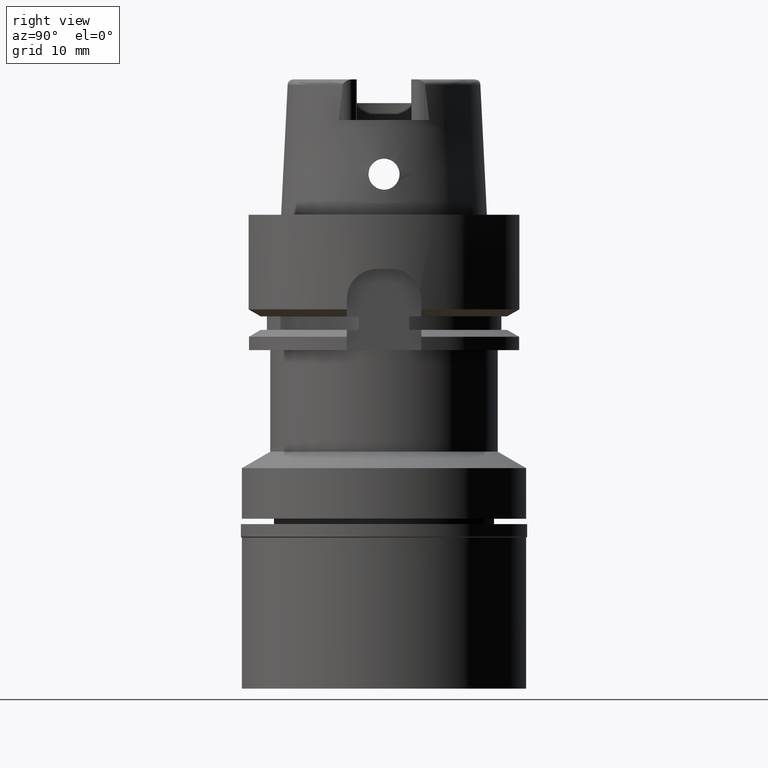
[diagram: clean part render]
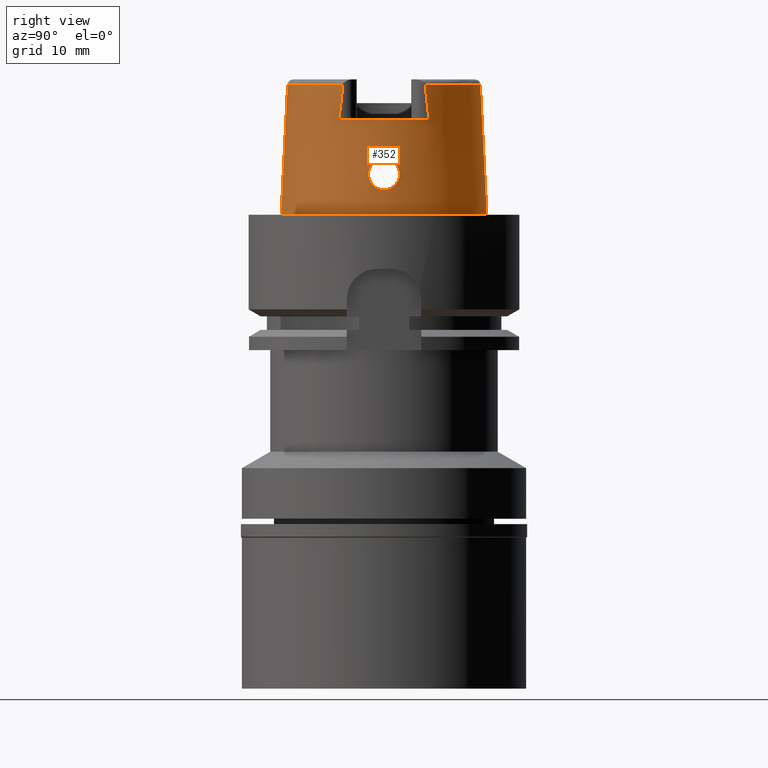
[diagram: same view with one face highlighted and labeled with its STEP entity id]
A machine part, right view. The second image highlights one B-rep face of the part: STEP entity #352.
In plain terms, the highlighted conical surface has half-angle 2.862 deg.
Its self-contained STEP definition (entity closure, byte-faithful):
#1 = CARTESIAN_POINT ( 'NONE',  ( 14.76720264229077983, 0.8884696048942833935, 8.121473001119964508 ) ) ;
#22 = ORIENTED_EDGE ( 'NONE', *, *, #4532, .T. ) ;
#55 = CARTESIAN_POINT ( 'NONE',  ( 0.0000000000000000000, -14.23797715755999782, 19.23995141520000018 ) ) ;
#90 = VERTEX_POINT ( 'NONE', #4732 ) ;
#115 = CARTESIAN_POINT ( 'NONE',  ( 0.0000000000000000000, -14.23797715755999782, 19.23995141520000018 ) ) ;
#143 = EDGE_CURVE ( 'NONE', #242, #1725, #855, .T. ) ;
#172 = CARTESIAN_POINT ( 'NONE',  ( 14.72139618041586573, -1.755542573526525318, 7.496569510163651806 ) ) ;
#194 = CARTESIAN_POINT ( 'NONE',  ( 14.73107783725397191, -1.595554514696325699, 7.656674591391470663 ) ) ;
#218 = CARTESIAN_POINT ( 'NONE',  ( 14.77731901309395113, -0.5814282938311156057, 8.226675195045524802 ) ) ;
#242 = VERTEX_POINT ( 'NONE', #115 ) ;
#244 = CARTESIAN_POINT ( 'NONE',  ( 14.76993064239802500, -0.8163392600609616911, 8.150418802496492532 ) ) ;
#248 = CARTESIAN_POINT ( 'NONE',  ( 14.73838464789642799, 2.283673255521244005, 5.717031159047771816 ) ) ;
#263 = CARTESIAN_POINT ( 'NONE',  ( 14.77403021748278711, -0.6940870227041476825, 8.193120727681970195 ) ) ;
#269 = CARTESIAN_POINT ( 'NONE',  ( 14.99369859953582207, 0.6924098575434610714, 3.806367731850518688 ) ) ;
#288 = CARTESIAN_POINT ( 'NONE',  ( 14.78448042276499663, -2.153271361086720237, 5.191215242668986818 ) ) ;
#295 = CARTESIAN_POINT ( 'NONE',  ( 14.91310332493011792, 1.491578554821691993, 4.248699990972128582 ) ) ;
#316 = CARTESIAN_POINT ( 'NONE',  ( 14.89011896120244316, -1.642687028854354914, 4.390134021954860799 ) ) ;
#322 = CARTESIAN_POINT ( 'NONE',  ( 14.74746059064439940, 1.309000756800404286, 7.891206140794177593 ) ) ;
#343 = CARTESIAN_POINT ( 'NONE',  ( 14.75280450722332048, 1.208753978975017462, 7.958772444877451946 ) ) ;
#352 = ADVANCED_FACE ( 'NONE', ( #1845, #3108 ), #2176, .T. ) ;
#363 = CARTESIAN_POINT ( 'NONE',  ( 14.87062860233185191, -1.757273805534501854, 4.515609537580949073 ) ) ;
#400 = CARTESIAN_POINT ( 'NONE',  ( 14.76156744408123522, -2.228555501842248265, 5.425854319304590945 ) ) ;
#406 = CARTESIAN_POINT ( 'NONE',  ( 14.76237129637990364, 1.005064329474513851, 8.069065966257710443 ) ) ;
#438 = CARTESIAN_POINT ( 'NONE',  ( 14.71591554278339942, 1.851024872992028003, 7.367622282165832814 ) ) ;
#470 = DIRECTION ( 'NONE',  ( 0.8882768779220027167, 0.4593083802296007434, 0.0000000000000000000 ) ) ;
#559 = EDGE_CURVE ( 'NONE', #2253, #90, #3278, .T. ) ;
#583 = CARTESIAN_POINT ( 'NONE',  ( 14.76817633258635176, -0.8633131008241671234, 8.131833996418242450 ) ) ;
#611 = CARTESIAN_POINT ( 'NONE',  ( 14.71779329819516668, -2.299087319909310256, 6.074385008131913288 ) ) ;
#637 = CARTESIAN_POINT ( 'NONE',  ( 14.70278707568186682, -2.228687130090102997, 6.587634668131774340 ) ) ;
#639 = DIRECTION ( 'NONE',  ( 0.0000000000000000000, -1.000000000000000000, 0.0000000000000000000 ) ) ;
#644 = CARTESIAN_POINT ( 'NONE',  ( 14.91762896612858746, 1.459180112708738708, 4.221659250602693092 ) ) ;
#666 = CARTESIAN_POINT ( 'NONE',  ( 14.75365000359263945, -1.190263404321819651, 7.968170412005450842 ) ) ;
#676 = LINE ( 'NONE', #2374, #1281 ) ;
#686 = CARTESIAN_POINT ( 'NONE',  ( 14.76781662056637501, -0.8727020751864694725, 8.128007703535027773 ) ) ;
#706 = EDGE_LOOP ( 'NONE', ( #4667, #3493, #3019, #2114, #1393, #1379, #2241, #22 ) ) ;
#715 = CARTESIAN_POINT ( 'NONE',  ( 14.84908536394946843, -1.873857377694586823, 4.664199259538155395 ) ) ;
#718 = CARTESIAN_POINT ( 'NONE',  ( 14.76150517817752750, 2.230989088422958400, 5.420707234339884550 ) ) ;
#742 = CARTESIAN_POINT ( 'NONE',  ( 14.72824110891817462, -2.300101298997531796, 5.864734432755099647 ) ) ;
#754 = CARTESIAN_POINT ( 'NONE',  ( 12.88000000001000167, 6.659963896840999986, 14.00000000000000000 ) ) ;
#762 = AXIS2_PLACEMENT_3D ( 'NONE', #1741, #3780, #4060 ) ;
#763 = CARTESIAN_POINT ( 'NONE',  ( 14.97980119303751323, -0.8876784351059042733, 3.878179336099063068 ) ) ;
#769 = CARTESIAN_POINT ( 'NONE',  ( 14.74875900468323664, 1.284725696202011491, 7.907744106688498142 ) ) ;
#771 = EDGE_CURVE ( 'NONE', #90, #2253, #1623, .T. ) ;
#792 = CARTESIAN_POINT ( 'NONE',  ( 14.72730057290446304, 1.657333882859143070, 7.594821360614248285 ) ) ;
#812 = CARTESIAN_POINT ( 'NONE',  ( 14.78748923745487076, -2.142316646971053284, 5.162992399265044163 ) ) ;
#823 = CARTESIAN_POINT ( 'NONE',  ( 14.76093411334229444, 1.037462528873337231, 8.053070434397287869 ) ) ;
#855 = LINE ( 'NONE', #55, #3288 ) ;
#903 = AXIS2_PLACEMENT_3D ( 'NONE', #2329, #3103, #3596 ) ;
#1022 = CARTESIAN_POINT ( 'NONE',  ( 14.71324047747436126, -2.292924399370714017, 6.183994065468948698 ) ) ;
#1025 = CARTESIAN_POINT ( 'NONE',  ( 0.0000000000000000000, 14.23797715755999782, 19.23995141520000018 ) ) ;
#1027 = CARTESIAN_POINT ( 'NONE',  ( 15.01216024442078378, 0.2893524015211426659, 3.713389520195632176 ) ) ;
#1051 = CARTESIAN_POINT ( 'NONE',  ( 0.0000000000000000000, 1.342457523729000028E-14, 9.619975707600000092 ) ) ;
#1055 = CARTESIAN_POINT ( 'NONE',  ( 15.00008916891907518, 0.5827676808513629902, 3.773748085926682094 ) ) ;
#1072 = CARTESIAN_POINT ( 'NONE',  ( 14.78499286951999636, -0.1391756145703256231, 8.299999999999998934 ) ) ;
#1077 = CARTESIAN_POINT ( 'NONE',  ( 14.96044055602768630, 1.107340051833965111, 3.978521285913407368 ) ) ;
#1101 = CARTESIAN_POINT ( 'NONE',  ( 14.70905000973601062, -1.978086552011957933, 7.175936672938100891 ) ) ;
#1109 = CARTESIAN_POINT ( 'NONE',  ( 14.80653935019741851, 2.068452204468117728, 4.992980833577002286 ) ) ;
#1136 = CARTESIAN_POINT ( 'NONE',  ( 14.93864860367077796, 1.297535571076419592, 4.099461658564449884 ) ) ;
#1179 = CARTESIAN_POINT ( 'NONE',  ( 14.83944436681648682, -1.920884344976056646, 4.734973330218039678 ) ) ;
#1185 = CARTESIAN_POINT ( 'NONE',  ( 14.77912392857840018, 0.5828703221745907825, 8.248662934343320430 ) ) ;
#1204 = CARTESIAN_POINT ( 'NONE',  ( 14.97618292910479454, -0.9317931712362607088, 3.897086156092339770 ) ) ;
#1212 = CARTESIAN_POINT ( 'NONE',  ( 14.70330888369040778, 2.224627193735192687, 6.588932765772033129 ) ) ;
#1231 = CARTESIAN_POINT ( 'NONE',  ( 14.83564924807491181, -1.939153593823936372, 4.763150147672264190 ) ) ;
#1237 = CARTESIAN_POINT ( 'NONE',  ( 14.72892122233149337, 1.630338754948051028, 7.622342610093115312 ) ) ;
#1257 = CARTESIAN_POINT ( 'NONE',  ( 14.81755823113681103, -2.021972739957513365, 4.903166805378700310 ) ) ;
#1268 = CARTESIAN_POINT ( 'NONE',  ( 14.73565761545677155, 1.519454258777471756, 7.727042433274835531 ) ) ;
#1281 = VECTOR ( 'NONE', #3660, 1000.000000000000227 ) ;
#1299 = CARTESIAN_POINT ( 'NONE',  ( 12.87999628661343188, -6.461605140762700650, 15.82216426204298365 ) ) ;
#1340 = VERTEX_POINT ( 'NONE', #754 ) ;
#1379 = ORIENTED_EDGE ( 'NONE', *, *, #2590, .T. ) ;
#1386 = VERTEX_POINT ( 'NONE', #1986 ) ;
#1393 = ORIENTED_EDGE ( 'NONE', *, *, #1772, .F. ) ;
#1446 = CARTESIAN_POINT ( 'NONE',  ( 14.70192435888373339, -2.185227616521955962, 6.733823491999718414 ) ) ;
#1477 = CARTESIAN_POINT ( 'NONE',  ( 14.70329731928839401, -2.122891862972885679, 6.885111733794631483 ) ) ;
#1483 = CARTESIAN_POINT ( 'NONE',  ( 14.93066970024060858, 1.362095945626555338, 4.144870806635192473 ) ) ;
#1484 = CIRCLE ( 'NONE', #2287, 14.49998341749000730 ) ;
#1489 = CIRCLE ( 'NONE', #762, 14.23797715756000315 ) ;
#1502 = CARTESIAN_POINT ( 'NONE',  ( 14.74920213610175779, -1.276369503766169311, 7.913344848174132196 ) ) ;
#1505 = CARTESIAN_POINT ( 'NONE',  ( 14.77581027532843017, 2.186694228961773234, 5.268270867384146960 ) ) ;
#1521 = CARTESIAN_POINT ( 'NONE',  ( 14.74980961183667993, -1.264887640985278061, 7.920966464290619236 ) ) ;
#1547 = CARTESIAN_POINT ( 'NONE',  ( 14.72981229748400800, -1.616027270497286672, 7.636626740827475501 ) ) ;
#1551 = ORIENTED_EDGE ( 'NONE', *, *, #559, .F. ) ;
#1599 = CARTESIAN_POINT ( 'NONE',  ( 14.70695050044167829, 2.017590789650262728, 7.114351364698928037 ) ) ;
#1623 = B_SPLINE_CURVE_WITH_KNOTS ( 'NONE', 3,
 ( #4015, #1072, #4040, #3598, #218, #263, #2283, #244, #2363, #583, #686, #5269, #1922, #4423, #3645, #4068, #666, #4885, #1898, #1521, #4451, #1502, #3182, #3233, #2387, #5313, #194, #1547, #4835, #5240, #2749, #2309, #2772, #4905, #3959, #3985, #172, #1950, #1101, #3620, #3155, #5293, #1870, #3546, #5210, #1477, #1446, #637, #3129, #4805, #1022, #4398, #611, #4594, #742, #4990, #2044, #400, #4090, #3336, #288, #812, #2431, #1675, #4926, #5335, #1257, #3309, #2515, #4194, #1231, #2898, #1179, #715, #3674, #363, #4117, #5381, #4498, #316, #4976, #2103, #3778, #3363, #5033, #3280, #2923, #1204, #2406, #4540, #763, #4569, #1993, #4948 ),
 .UNSPECIFIED., .F., .F.,
 ( 4, 2, 2, 1, 1, 1, 2, 2, 2, 2, 1, 1, 1, 2, 2, 2, 2, 2, 1, 1, 1, 2, 2, 2, 2, 1, 1, 2, 2, 2, 2, 2, 2, 2, 2, 1, 1, 2, 2, 2, 2, 1, 2, 2, 2, 1, 1, 2, 2, 2, 2, 1, 1, 2, 2, 4 ),
 ( 0.0000000000000000000, 0.06250000000002985112, 0.09375000000004476974, 0.1093750000000523470, 0.1171875000000559969, 0.1210937500000578149, 0.1230468750000587169, 0.1250000000000596190, 0.1562500000000745515, 0.1718750000000817957, 0.1796875000000855982, 0.1835937500000875133, 0.1855468750000884848, 0.1865234375000889289, 0.1875000000000893452, 0.2187500000000972833, 0.2343750000001011413, 0.2421875000001030009, 0.2460937500001044720, 0.2480468750001054157, 0.2490234375001037503, 0.2495117187501036671, 0.2500000000001035283, 0.3125000000001019185, 0.3437500000001010858, 0.3593750000001005862, 0.3671875000001003642, 0.3710937500001000866, 0.3750000000000997535, 0.4375000000000922040, 0.4687500000000882627, 0.4843750000000861533, 0.5000000000000839329, 0.5625000000000750511, 0.5937500000000704992, 0.6093750000000681677, 0.6171875000000669464, 0.6210937500000663913, 0.6250000000000658362, 0.6562500000000607292, 0.6718750000000582867, 0.6796875000000570655, 0.6835937500000562883, 0.6875000000000555112, 0.7187500000000489608, 0.7343750000000455191, 0.7421875000000438538, 0.7460937500000431877, 0.7500000000000424105, 0.8125000000000311973, 0.8437500000000256462, 0.8593750000000227596, 0.8671875000000213163, 0.8710937500000205391, 0.8750000000000198730, 1.000000000000000000 ),
 .UNSPECIFIED. ) ;
#1653 = CARTESIAN_POINT ( 'NONE',  ( 14.76638081779312550, 0.9092272963533597485, 8.112680115931839353 ) ) ;
#1669 = CARTESIAN_POINT ( 'NONE',  ( 12.87999235482999794, -6.068467463555999863, 19.23976219496000084 ) ) ;
#1675 = CARTESIAN_POINT ( 'NONE',  ( 14.79076017643395957, -2.130234140995594494, 5.132725120408807129 ) ) ;
#1682 = CARTESIAN_POINT ( 'NONE',  ( 14.72851255932738468, 1.637138559125930426, 7.615484661195980109 ) ) ;
#1725 = VERTEX_POINT ( 'NONE', #3320 ) ;
#1741 = CARTESIAN_POINT ( 'NONE',  ( 0.0000000000000000000, 1.459778984583999657E-14, 19.23995141520000018 ) ) ;
#1753 = DIRECTION ( 'NONE',  ( 0.0000000000000000000, -0.04993926899656212642, -0.9987522562738413434 ) ) ;
#1772 = EDGE_CURVE ( 'NONE', #3802, #1386, #676, .T. ) ;
#1842 = ORIENTED_EDGE ( 'NONE', *, *, #771, .F. ) ;
#1845 = FACE_OUTER_BOUND ( 'NONE', #706, .T. ) ;
#1870 = CARTESIAN_POINT ( 'NONE',  ( 14.70375658940798580, -2.105287330038593474, 6.926390664454261881 ) ) ;
#1874 = VERTEX_POINT ( 'NONE', #4300 ) ;
#1898 = CARTESIAN_POINT ( 'NONE',  ( 14.75065032297800549, -1.248876159167588096, 7.931454445034910705 ) ) ;
#1902 = CARTESIAN_POINT ( 'NONE',  ( 12.88000000001000167, -6.659963896840999986, 14.00000000000000000 ) ) ;
#1922 = CARTESIAN_POINT ( 'NONE',  ( 14.76520950478226624, -0.9396943743903586332, 8.100206008043272732 ) ) ;
#1950 = CARTESIAN_POINT ( 'NONE',  ( 14.71548080446559936, -1.856546455237253257, 7.365960879231568725 ) ) ;
#1986 = CARTESIAN_POINT ( 'NONE',  ( 0.0000000000000000000, 15.20000663301000010, 5.684341886080998387E-14 ) ) ;
#1993 = CARTESIAN_POINT ( 'NONE',  ( 15.01500049748000265, -0.2875970093675397909, 3.699999999999998845 ) ) ;
#2029 = CARTESIAN_POINT ( 'NONE',  ( 14.71337117006111050, 1.896365627193211445, 7.303614320887154676 ) ) ;
#2044 = CARTESIAN_POINT ( 'NONE',  ( 14.75511519428891916, -2.246327419094103828, 5.500375478184067468 ) ) ;
#2052 = CARTESIAN_POINT ( 'NONE',  ( 14.74608431557818733, 1.334530998761783049, 7.873384040735499134 ) ) ;
#2103 = CARTESIAN_POINT ( 'NONE',  ( 14.91210751178380711, -1.507814773154234622, 4.254671185857885618 ) ) ;
#2111 = CARTESIAN_POINT ( 'NONE',  ( 14.76436978911451270, 0.9582207795525118366, 8.090959111845753782 ) ) ;
#2114 = ORIENTED_EDGE ( 'NONE', *, *, #3895, .T. ) ;
#2136 = CARTESIAN_POINT ( 'NONE',  ( 12.87999235482999794, -6.068467463555999863, 19.23976219496000084 ) ) ;
#2138 = CARTESIAN_POINT ( 'NONE',  ( 0.0000000000000000000, 1.342457523729000028E-14, 14.00000000000000000 ) ) ;
#2176 = CONICAL_SURFACE ( 'NONE', #4963, 14.71899189528999941, 0.04996004983832824653 ) ;
#2241 = ORIENTED_EDGE ( 'NONE', *, *, #4718, .T. ) ;
#2253 = VERTEX_POINT ( 'NONE', #4500 ) ;
#2283 = CARTESIAN_POINT ( 'NONE',  ( 14.77224878652673112, -0.7505141186887123173, 8.174747007063599469 ) ) ;
#2287 = AXIS2_PLACEMENT_3D ( 'NONE', #2138, #4322, #470 ) ;
#2309 = CARTESIAN_POINT ( 'NONE',  ( 14.72897069928876235, -1.629530858522276526, 7.623154133565825497 ) ) ;
#2315 = CARTESIAN_POINT ( 'NONE',  ( 15.00363948524310054, 0.5093489953368235401, 3.755865049600698224 ) ) ;
#2329 = CARTESIAN_POINT ( 'NONE',  ( 0.0000000000000000000, 1.459778984583999657E-14, 19.23995141520000018 ) ) ;
#2341 = CARTESIAN_POINT ( 'NONE',  ( 14.85052550205044319, 1.867320722922695353, 4.655168218417025550 ) ) ;
#2363 = CARTESIAN_POINT ( 'NONE',  ( 14.76871161833036084, -0.8492265415387453276, 8.137520403994860985 ) ) ;
#2367 = CARTESIAN_POINT ( 'NONE',  ( 14.90604676839071807, 1.540011574337391442, 4.291541944438461265 ) ) ;
#2374 = CARTESIAN_POINT ( 'NONE',  ( 0.0000000000000000000, 14.23797715755999782, 19.23995141520000018 ) ) ;
#2387 = CARTESIAN_POINT ( 'NONE',  ( 14.73733817633101140, -1.491312462989942578, 7.752623123807434347 ) ) ;
#2391 = CARTESIAN_POINT ( 'NONE',  ( 15.01500049747999910, 0.0000000000000000000, 3.700000000000000178 ) ) ;
#2406 = CARTESIAN_POINT ( 'NONE',  ( 14.97807143272082087, -0.9089475989131183820, 3.887209802366227152 ) ) ;
#2410 = CARTESIAN_POINT ( 'NONE',  ( 14.73131560104705429, 2.293625882893985057, 5.825102787180580499 ) ) ;
#2431 = CARTESIAN_POINT ( 'NONE',  ( 14.78951381934390774, -2.134870925351762150, 5.144179649888426020 ) ) ;
#2439 = CARTESIAN_POINT ( 'NONE',  ( 14.76710375349439630, 0.8909825970145760499, 8.120416373766978779 ) ) ;
#2462 = CARTESIAN_POINT ( 'NONE',  ( 14.76532971502633984, 0.9352367696578559597, 8.101380475417673921 ) ) ;
#2488 = CARTESIAN_POINT ( 'NONE',  ( 14.74496216118262204, 1.355092497319190681, 7.858491734422372588 ) ) ;
#2492 = EDGE_CURVE ( 'NONE', #3938, #5339, #2968, .T. ) ;
#2510 = CIRCLE ( 'NONE', #5230, 15.20000663301000010 ) ;
#2515 = CARTESIAN_POINT ( 'NONE',  ( 14.82860992875789208, -1.972230638254820700, 4.816480848215509702 ) ) ;
#2519 = CARTESIAN_POINT ( 'NONE',  ( 14.70277955824857585, 2.150504096220148043, 6.816077247848269849 ) ) ;
#2544 = CARTESIAN_POINT ( 'NONE',  ( 14.74279453232067638, 1.394510676934299642, 7.829319213462865079 ) ) ;
#2590 = EDGE_CURVE ( 'NONE', #3802, #1874, #2676, .T. ) ;
#2637 = DIRECTION ( 'NONE',  ( 0.0000000000000000000, -1.000000000000000000, 0.0000000000000000000 ) ) ;
#2676 = CIRCLE ( 'NONE', #903, 14.23797715755999782 ) ;
#2727 = CARTESIAN_POINT ( 'NONE',  ( 14.98146799912857752, 0.8667505241429238616, 3.869553935212956208 ) ) ;
#2749 = CARTESIAN_POINT ( 'NONE',  ( 14.72904674972185290, -1.628310959077896580, 7.624378492265700302 ) ) ;
#2754 = CARTESIAN_POINT ( 'NONE',  ( 14.99023704111988842, 0.7471086058984407474, 3.824125380206624847 ) ) ;
#2772 = CARTESIAN_POINT ( 'NONE',  ( 14.72894958168758883, -1.629870767956382638, 7.622812772376184931 ) ) ;
#2779 = CARTESIAN_POINT ( 'NONE',  ( 14.98232649256040361, 0.8557163737499904332, 3.865089305859875424 ) ) ;
#2805 = CARTESIAN_POINT ( 'NONE',  ( 14.80051564633271255, 2.092639537935069960, 5.045415017945352076 ) ) ;
#2830 = CARTESIAN_POINT ( 'NONE',  ( 14.89481308743447485, 1.613538811823380437, 4.360920470070233534 ) ) ;
#2855 = CARTESIAN_POINT ( 'NONE',  ( 14.72880477828798362, 1.632275782036693768, 7.620394298559940438 ) ) ;
#2878 = CARTESIAN_POINT ( 'NONE',  ( 14.72320473717247857, 2.300013945573916807, 5.964494725489295490 ) ) ;
#2898 = CARTESIAN_POINT ( 'NONE',  ( 14.83806240365515450, -1.927575721372196238, 4.745182859528971342 ) ) ;
#2905 = CARTESIAN_POINT ( 'NONE',  ( 14.70317394866275684, 2.128405321354693402, 6.871750769367722889 ) ) ;
#2923 = CARTESIAN_POINT ( 'NONE',  ( 14.97156674660902631, -0.9854958979347185899, 3.921344386826397521 ) ) ;
#2929 = CARTESIAN_POINT ( 'NONE',  ( 14.72270127388761196, 1.734450797356519081, 7.511579447716980162 ) ) ;
#2957 = CARTESIAN_POINT ( 'NONE',  ( 14.78499286951999991, 0.2788160883449998240, 8.300000000000006040 ) ) ;
#2968 = B_SPLINE_CURVE_WITH_KNOTS ( 'NONE', 3,
 ( #4658, #1299, #3018, #2136 ),
 .UNSPECIFIED., .F., .F.,
 ( 4, 4 ),
 ( 0.0000000000000000000, 1.000000000000000000 ),
 .UNSPECIFIED. ) ;
#3018 = CARTESIAN_POINT ( 'NONE',  ( 12.87998480872806084, -6.264498830243788063, 17.56875155615921358 ) ) ;
#3019 = ORIENTED_EDGE ( 'NONE', *, *, #143, .T. ) ;
#3025 = DIRECTION ( 'NONE',  ( 0.0000000000000000000, 0.0000000000000000000, 1.000000000000000000 ) ) ;
#3103 = DIRECTION ( 'NONE',  ( 0.0000000000000000000, 0.0000000000000000000, -1.000000000000000000 ) ) ;
#3108 = FACE_BOUND ( 'NONE', #4170, .T. ) ;
#3129 = CARTESIAN_POINT ( 'NONE',  ( 14.70731352311811335, -2.271682336033174820, 6.367490912690039195 ) ) ;
#3155 = CARTESIAN_POINT ( 'NONE',  ( 14.70531919359189388, -2.060537223936308227, 7.022424985088719929 ) ) ;
#3162 = CARTESIAN_POINT ( 'NONE',  ( 14.79652018146351011, 2.108368993475396191, 5.080678015576196138 ) ) ;
#3182 = CARTESIAN_POINT ( 'NONE',  ( 14.74916473909279446, -1.277077397323025387, 7.912876191129118553 ) ) ;
#3184 = CARTESIAN_POINT ( 'NONE',  ( 14.98573257728376795, 0.8105661619660866624, 3.847411101479868645 ) ) ;
#3208 = CARTESIAN_POINT ( 'NONE',  ( 12.88000642478999858, 6.068395837171999929, 19.23995141520000018 ) ) ;
#3214 = CARTESIAN_POINT ( 'NONE',  ( 14.89626939606834455, 1.604271477149876279, 4.351838369907127024 ) ) ;
#3233 = CARTESIAN_POINT ( 'NONE',  ( 14.74232335281342010, -1.405636856705496651, 7.826667567256946789 ) ) ;
#3237 = CARTESIAN_POINT ( 'NONE',  ( 14.88524216259907718, 1.673869351442358155, 4.420800719733525952 ) ) ;
#3262 = CARTESIAN_POINT ( 'NONE',  ( 14.70255723605117204, 2.173856954397404451, 6.752946483152019397 ) ) ;
#3278 = B_SPLINE_CURVE_WITH_KNOTS ( 'NONE', 3,
 ( #2391, #4814, #1027, #2315, #1055, #269, #2754, #3184, #4864, #2779, #2727, #3602, #1077, #1136, #1483, #644, #295, #2367, #5274, #3579, #3214, #2830, #3237, #5295, #4073, #2341, #5319, #3622, #4020, #1109, #2805, #3162, #4503, #1505, #718, #4455, #248, #2410, #4404, #3343, #2878, #3785, #5366, #4631, #1212, #5040, #3262, #2519, #4930, #4236, #2905, #4201, #1599, #2029, #438, #5010, #2929, #5390, #792, #3370, #1682, #5342, #2855, #1237, #3286, #4575, #1268, #3705, #4958, #2544, #2488, #2052, #322, #5417, #4173, #769, #343, #3678, #823, #406, #2111, #2462, #1653, #4600, #2439, #1, #1185, #2957, #4547 ),
 .UNSPECIFIED., .F., .F.,
 ( 4, 2, 2, 1, 1, 2, 2, 2, 2, 2, 1, 2, 2, 2, 2, 2, 1, 2, 2, 2, 2, 2, 2, 2, 2, 1, 1, 2, 2, 2, 2, 1, 1, 1, 1, 1, 2, 2, 2, 2, 2, 1, 1, 2, 2, 2, 2, 1, 1, 2, 2, 4 ),
 ( 0.0000000000000000000, 0.06250000000014861723, 0.09375000000022294666, 0.1093750000002601114, 0.1171875000002787354, 0.1210937500002880612, 0.1250000000002973732, 0.1875000000004462819, 0.2187500000005208611, 0.2343750000005582479, 0.2421875000005770662, 0.2460937500005863643, 0.2500000000005956902, 0.2812500000006702972, 0.3125000000007448486, 0.3437500000008194556, 0.3593750000008567591, 0.3671875000008753553, 0.3750000000008939516, 0.4375000000010421664, 0.4687500000011160517, 0.4843750000011528556, 0.5000000000011896040, 0.5625000000013371526, 0.5937500000014107604, 0.6093750000014473978, 0.6171875000014658275, 0.6210937500014752644, 0.6250000000014845902, 0.6875000000016350254, 0.7187500000017101875, 0.7343750000017480462, 0.7421875000017669199, 0.7460937500017764679, 0.7480468750017813528, 0.7490234375017837953, 0.7495117187517851276, 0.7500000000017865709, 0.7812500000015555335, 0.7968750000014399593, 0.8046875000013822277, 0.8085937500013533619, 0.8105468750013390400, 0.8115234375013318235, 0.8125000000013246071, 0.8437500000011010082, 0.8593750000009893197, 0.8671875000009334755, 0.8710937500009056089, 0.8730468750008918422, 0.8750000000008780754, 1.000000000000000000 ),
 .UNSPECIFIED. ) ;
#3280 = CARTESIAN_POINT ( 'NONE',  ( 14.96725057751258348, -1.032134887418608926, 3.944290136861687390 ) ) ;
#3286 = CARTESIAN_POINT ( 'NONE',  ( 14.72897698920208676, 1.629411162361538601, 7.623274758165993426 ) ) ;
#3288 = VECTOR ( 'NONE', #1753, 1000.000000000000227 ) ;
#3309 = CARTESIAN_POINT ( 'NONE',  ( 14.82185081583405939, -2.003074697910550928, 4.868922263044074050 ) ) ;
#3320 = CARTESIAN_POINT ( 'NONE',  ( 0.0000000000000000000, -15.20000663301000010, 1.527666881883999820E-13 ) ) ;
#3336 = CARTESIAN_POINT ( 'NONE',  ( 14.77765626216125128, -2.177348013164218887, 5.257069935556764939 ) ) ;
#3343 = CARTESIAN_POINT ( 'NONE',  ( 14.72500900753388819, 2.299249273269633242, 5.931425077987564798 ) ) ;
#3363 = CARTESIAN_POINT ( 'NONE',  ( 14.95142558221937357, -1.189404405358674754, 4.029959945882174210 ) ) ;
#3370 = CARTESIAN_POINT ( 'NONE',  ( 14.72810580111224965, 1.643911431280034696, 7.608604480931910885 ) ) ;
#3493 = ORIENTED_EDGE ( 'NONE', *, *, #5110, .T. ) ;
#3546 = CARTESIAN_POINT ( 'NONE',  ( 14.70350606668146831, -2.114575182731917469, 6.904783076964276844 ) ) ;
#3579 = CARTESIAN_POINT ( 'NONE',  ( 14.89875562895232619, 1.588254843417976625, 4.336398399956775229 ) ) ;
#3596 = DIRECTION ( 'NONE',  ( 0.0000000000000000000, 1.000000000000000000, 0.0000000000000000000 ) ) ;
#3598 = CARTESIAN_POINT ( 'NONE',  ( 14.77914612176681253, -0.5065881320972810409, 8.244784997213507438 ) ) ;
#3602 = CARTESIAN_POINT ( 'NONE',  ( 14.97210884702086808, 0.9853782908116196504, 3.918270532089204838 ) ) ;
#3620 = CARTESIAN_POINT ( 'NONE',  ( 14.70731345635878640, -2.013636645086462007, 7.113522997970052941 ) ) ;
#3622 = CARTESIAN_POINT ( 'NONE',  ( 14.82500704708316341, 1.988596419559568007, 4.841885597336854197 ) ) ;
#3645 = CARTESIAN_POINT ( 'NONE',  ( 14.75792287674205028, -1.102787470605057552, 8.018733999658982370 ) ) ;
#3660 = DIRECTION ( 'NONE',  ( 0.0000000000000000000, 0.04993926899656212642, -0.9987522562738413434 ) ) ;
#3674 = CARTESIAN_POINT ( 'NONE',  ( 14.85768483925605921, -1.828954227871980587, 4.603349892599211124 ) ) ;
#3678 = CARTESIAN_POINT ( 'NONE',  ( 14.75630800058581471, 1.137745804606199007, 8.000310304365571668 ) ) ;
#3705 = CARTESIAN_POINT ( 'NONE',  ( 14.73772986802796581, 1.484164813753395151, 7.757955113719580353 ) ) ;
#3778 = CARTESIAN_POINT ( 'NONE',  ( 14.92936835592787048, -1.380017842817133467, 4.153784040051897719 ) ) ;
#3780 = DIRECTION ( 'NONE',  ( 0.0000000000000000000, 0.0000000000000000000, -1.000000000000000000 ) ) ;
#3785 = CARTESIAN_POINT ( 'NONE',  ( 14.71399977283508242, 2.299943352517479500, 6.146481960841199133 ) ) ;
#3802 = VERTEX_POINT ( 'NONE', #1025 ) ;
#3895 = EDGE_CURVE ( 'NONE', #1725, #1386, #2510, .T. ) ;
#3938 = VERTEX_POINT ( 'NONE', #1902 ) ;
#3959 = CARTESIAN_POINT ( 'NONE',  ( 14.72894134124535981, -1.630004321465590378, 7.622678622849567098 ) ) ;
#3985 = CARTESIAN_POINT ( 'NONE',  ( 14.72899866985667217, -1.629050198060672638, 7.623637085054038032 ) ) ;
#3988 = CARTESIAN_POINT ( 'NONE',  ( 0.0000000000000000000, 1.342457523729000028E-14, 5.684341886080998387E-14 ) ) ;
#4015 = CARTESIAN_POINT ( 'NONE',  ( 14.78499286951999991, -6.884507511411997731E-14, 8.300000000000000711 ) ) ;
#4020 = CARTESIAN_POINT ( 'NONE',  ( 14.81265457374479944, 2.042544949888199124, 4.941961106541232773 ) ) ;
#4040 = CARTESIAN_POINT ( 'NONE',  ( 14.78353118258170085, -0.2843049012622392846, 8.287342475517155194 ) ) ;
#4060 = DIRECTION ( 'NONE',  ( 0.9046212760392207120, -0.4262163147243098749, 0.0000000000000000000 ) ) ;
#4068 = CARTESIAN_POINT ( 'NONE',  ( 14.75627668339521215, -1.137262425045223235, 7.999580242457444257 ) ) ;
#4073 = CARTESIAN_POINT ( 'NONE',  ( 14.85941152871402871, 1.821130860974495835, 4.593162639219712240 ) ) ;
#4090 = CARTESIAN_POINT ( 'NONE',  ( 14.77214367936816330, -2.195485303206906824, 5.313436087996452173 ) ) ;
#4117 = CARTESIAN_POINT ( 'NONE',  ( 14.87711162139873622, -1.720352856297304278, 4.472622287793224238 ) ) ;
#4170 = EDGE_LOOP ( 'NONE', ( #1551, #1842 ) ) ;
#4173 = CARTESIAN_POINT ( 'NONE',  ( 14.74847080173804414, 1.290130044961493638, 7.904097045005443967 ) ) ;
#4194 = CARTESIAN_POINT ( 'NONE',  ( 14.83206954418928092, -1.956184319801783644, 4.789992111342566083 ) ) ;
#4201 = CARTESIAN_POINT ( 'NONE',  ( 14.70428665209201924, 2.078673823760207817, 6.992028626425238258 ) ) ;
#4236 = CARTESIAN_POINT ( 'NONE',  ( 14.70308256921509305, 2.132808860337970458, 6.860941056169391317 ) ) ;
#4300 = CARTESIAN_POINT ( 'NONE',  ( 12.88000642478999858, 6.068395837171999929, 19.23995141520000018 ) ) ;
#4322 = DIRECTION ( 'NONE',  ( 0.0000000000000000000, 0.0000000000000000000, -1.000000000000000000 ) ) ;
#4386 = B_SPLINE_CURVE_WITH_KNOTS ( 'NONE', 3,
 ( #3208, #4806, #4886, #4424 ),
 .UNSPECIFIED., .F., .F.,
 ( 4, 4 ),
 ( 0.0000000000000000000, 1.000000000000000000 ),
 .UNSPECIFIED. ) ;
#4398 = CARTESIAN_POINT ( 'NONE',  ( 14.71466829626354489, -2.295563337640382784, 6.147392662245807493 ) ) ;
#4404 = CARTESIAN_POINT ( 'NONE',  ( 14.72911174276450019, 2.296055618502760964, 5.860793903503290991 ) ) ;
#4423 = CARTESIAN_POINT ( 'NONE',  ( 14.76254667721789815, -1.002447926060432870, 8.071426277314202480 ) ) ;
#4424 = CARTESIAN_POINT ( 'NONE',  ( 12.88000000001000167, 6.659963896840999986, 14.00000000000000000 ) ) ;
#4451 = CARTESIAN_POINT ( 'NONE',  ( 14.74944561823880029, -1.271773632072639160, 7.916402736103134608 ) ) ;
#4455 = CARTESIAN_POINT ( 'NONE',  ( 14.74370730846497679, 2.273485309346527927, 5.643646729441647025 ) ) ;
#4498 = CARTESIAN_POINT ( 'NONE',  ( 14.88794867357267115, -1.655848453013716748, 4.403674518562816331 ) ) ;
#4500 = CARTESIAN_POINT ( 'NONE',  ( 15.01500049747999910, 0.0000000000000000000, 3.700000000000000178 ) ) ;
#4503 = CARTESIAN_POINT ( 'NONE',  ( 14.79464834163354503, 2.115599261155864053, 5.097413402604368038 ) ) ;
#4532 = EDGE_CURVE ( 'NONE', #1340, #3938, #1484, .T. ) ;
#4540 = CARTESIAN_POINT ( 'NONE',  ( 14.97931046617356721, -0.8937569046882440915, 3.880739102396930651 ) ) ;
#4547 = CARTESIAN_POINT ( 'NONE',  ( 14.78499286951999991, -6.884507511411997731E-14, 8.300000000000000711 ) ) ;
#4569 = CARTESIAN_POINT ( 'NONE',  ( 15.00350684704980075, -0.5889710121722295799, 3.754705037256619971 ) ) ;
#4575 = CARTESIAN_POINT ( 'NONE',  ( 14.73066773661027362, 1.603002533292625875, 7.651075443961564027 ) ) ;
#4594 = CARTESIAN_POINT ( 'NONE',  ( 14.71959265609127954, -2.299973879154861844, 6.035955912776645782 ) ) ;
#4600 = CARTESIAN_POINT ( 'NONE',  ( 14.76681654523665799, 0.8982567176308688950, 8.117345143228414273 ) ) ;
#4631 = CARTESIAN_POINT ( 'NONE',  ( 14.70427633960034264, 2.242764913348913147, 6.515404003416162659 ) ) ;
#4658 = CARTESIAN_POINT ( 'NONE',  ( 12.88000000001000167, -6.659963896840999986, 14.00000000000000000 ) ) ;
#4667 = ORIENTED_EDGE ( 'NONE', *, *, #2492, .T. ) ;
#4718 = EDGE_CURVE ( 'NONE', #1874, #1340, #4386, .T. ) ;
#4732 = CARTESIAN_POINT ( 'NONE',  ( 14.78499286951999991, -6.884507511411997731E-14, 8.300000000000000711 ) ) ;
#4805 = CARTESIAN_POINT ( 'NONE',  ( 14.70936106763670814, -2.282325874579429481, 6.293961003629046758 ) ) ;
#4806 = CARTESIAN_POINT ( 'NONE',  ( 12.88000426035953438, 6.264427330652400983, 17.56902548047736090 ) ) ;
#4814 = CARTESIAN_POINT ( 'NONE',  ( 15.01500049748000620, 0.1430746711946755678, 3.700000000000001066 ) ) ;
#4835 = CARTESIAN_POINT ( 'NONE',  ( 14.72949350683535563, -1.621146774688946746, 7.631535178453624724 ) ) ;
#4838 = DIRECTION ( 'NONE',  ( 0.0000000000000000000, 0.0000000000000000000, -1.000000000000000000 ) ) ;
#4864 = CARTESIAN_POINT ( 'NONE',  ( 14.98370224013596186, 0.8376696992153868093, 3.857944057856074416 ) ) ;
#4885 = CARTESIAN_POINT ( 'NONE',  ( 14.75229731624577845, -1.217085292014718156, 7.951795604897482050 ) ) ;
#4886 = CARTESIAN_POINT ( 'NONE',  ( 12.88001670702532131, 6.461541544492881428, 15.82237498571002376 ) ) ;
#4905 = CARTESIAN_POINT ( 'NONE',  ( 14.72894415434752879, -1.629958609940861169, 7.622724539448741510 ) ) ;
#4926 = CARTESIAN_POINT ( 'NONE',  ( 14.79801672291820402, -2.103023503670073957, 5.066545273763508384 ) ) ;
#4930 = CARTESIAN_POINT ( 'NONE',  ( 14.70295118534163947, 2.139958611336674643, 6.843012620724165274 ) ) ;
#4948 = CARTESIAN_POINT ( 'NONE',  ( 15.01500049747999910, 0.0000000000000000000, 3.700000000000000178 ) ) ;
#4958 = CARTESIAN_POINT ( 'NONE',  ( 14.74145168631830494, 1.418516909349419874, 7.810689819364126762 ) ) ;
#4963 = AXIS2_PLACEMENT_3D ( 'NONE', #1051, #4838, #639 ) ;
#4976 = CARTESIAN_POINT ( 'NONE',  ( 14.89105208660082447, -1.637000183586074575, 4.384343375323971337 ) ) ;
#4990 = CARTESIAN_POINT ( 'NONE',  ( 14.73755416610892155, -2.287952457387230076, 5.721217470004223316 ) ) ;
#5010 = CARTESIAN_POINT ( 'NONE',  ( 14.72033832614057758, 1.774694195104196570, 7.463602220769488760 ) ) ;
#5033 = CARTESIAN_POINT ( 'NONE',  ( 14.95813898432911593, -1.126012150599255301, 3.993241791937571783 ) ) ;
#5040 = CARTESIAN_POINT ( 'NONE',  ( 14.70267205877299688, 2.191728434268688019, 6.698411382241602929 ) ) ;
#5110 = EDGE_CURVE ( 'NONE', #5339, #242, #1489, .T. ) ;
#5210 = CARTESIAN_POINT ( 'NONE',  ( 14.70335177168250773, -2.120652323211010604, 6.890446148762746859 ) ) ;
#5230 = AXIS2_PLACEMENT_3D ( 'NONE', #3988, #3025, #2637 ) ;
#5240 = CARTESIAN_POINT ( 'NONE',  ( 14.72916990477435562, -1.626338018535341323, 7.626355012096240671 ) ) ;
#5269 = CARTESIAN_POINT ( 'NONE',  ( 14.76759282135283335, -0.8784873959007321043, 8.125623459988995378 ) ) ;
#5274 = CARTESIAN_POINT ( 'NONE',  ( 14.90245146643559870, 1.564186574216303249, 4.313532941983214464 ) ) ;
#5293 = CARTESIAN_POINT ( 'NONE',  ( 14.70447470403319024, -2.082382290135963654, 6.977502135432841257 ) ) ;
#5295 = CARTESIAN_POINT ( 'NONE',  ( 14.87667304032503068, 1.724871442443564495, 4.476672235031603719 ) ) ;
#5313 = CARTESIAN_POINT ( 'NONE',  ( 14.73233375419925117, -1.575112393127596544, 7.676438522019008559 ) ) ;
#5319 = CARTESIAN_POINT ( 'NONE',  ( 14.83340473096685130, 1.949785703255502822, 4.777790969435827151 ) ) ;
#5335 = CARTESIAN_POINT ( 'NONE',  ( 14.80532094880093652, -2.074184784260277414, 5.003293045794809935 ) ) ;
#5339 = VERTEX_POINT ( 'NONE', #1669 ) ;
#5342 = CARTESIAN_POINT ( 'NONE',  ( 14.72868777230056914, 1.634222660096844804, 7.618430785871010080 ) ) ;
#5366 = CARTESIAN_POINT ( 'NONE',  ( 14.70880742522517970, 2.286018873320644573, 6.294381867592533375 ) ) ;
#5381 = CARTESIAN_POINT ( 'NONE',  ( 14.88469463431914086, -1.675465527418685818, 4.424106824297659557 ) ) ;
#5390 = CARTESIAN_POINT ( 'NONE',  ( 14.72572326937889464, 1.683687866759014273, 7.567170409196067205 ) ) ;
#5417 = CARTESIAN_POINT ( 'NONE',  ( 14.74806480030235534, 1.297723455545650051, 7.898929941476902528 ) ) ;